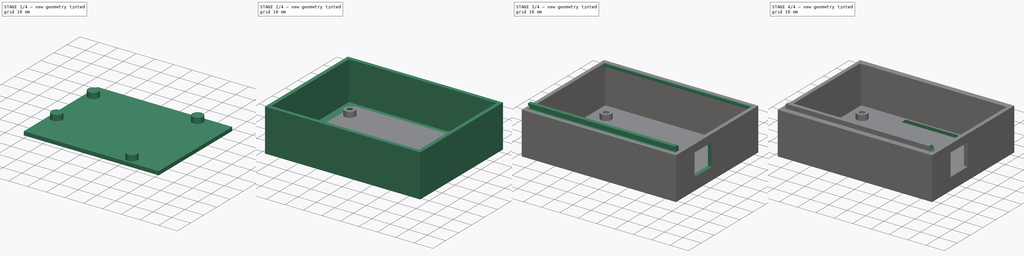
[diagram: build sequence overview — one tinted view per stage of 4, left to right]
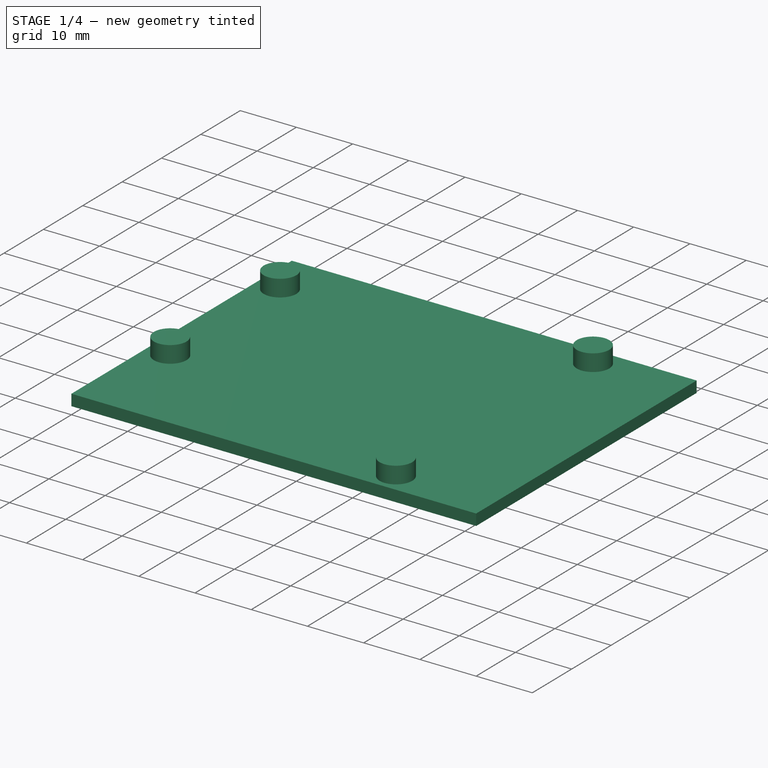
[diagram: stage 1 of 4 — iso view after this stage's code; geometry added in this stage tinted green]
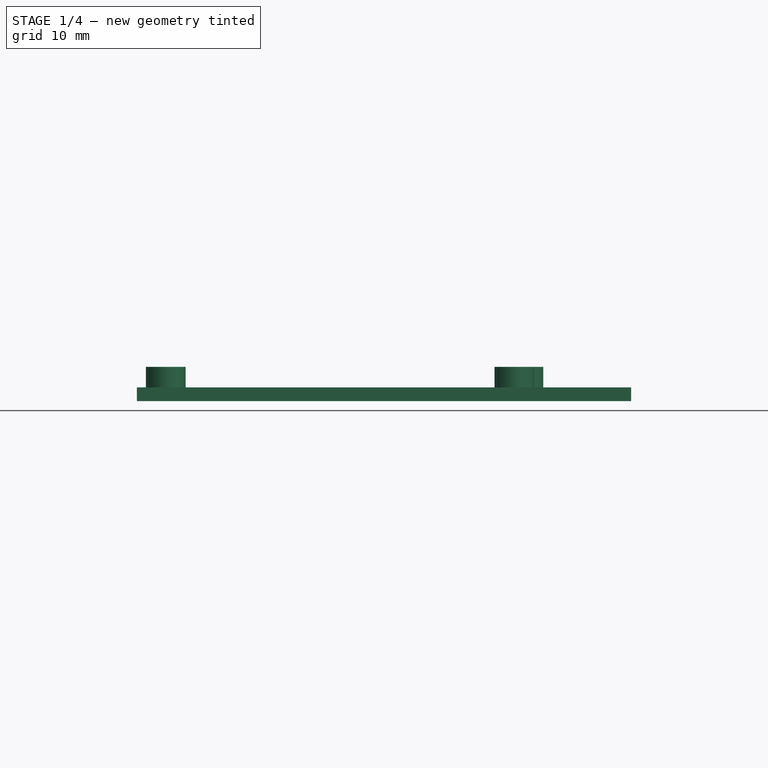
[diagram: stage 1 of 4 — front view after this stage's code; geometry added in this stage tinted green]
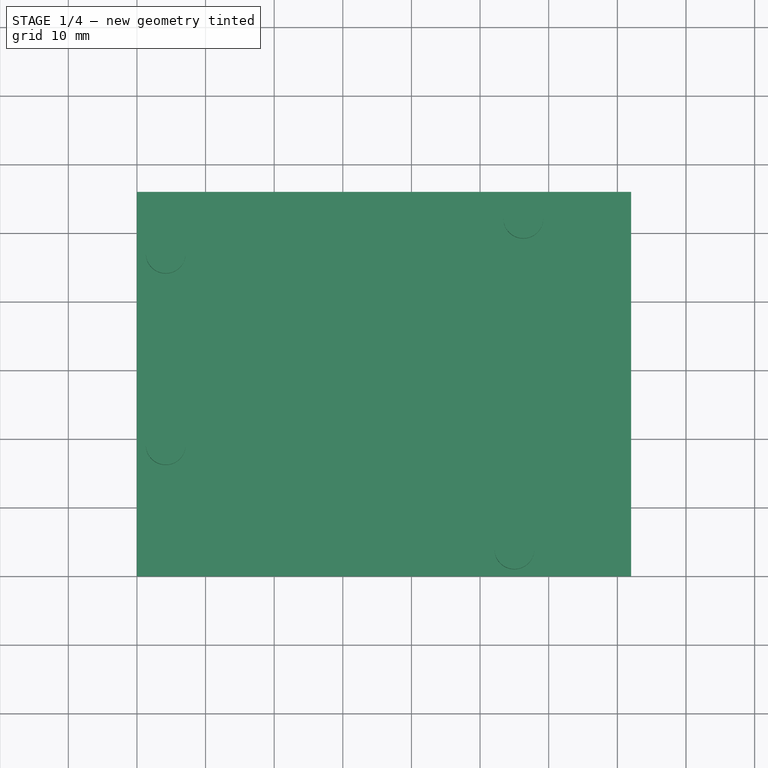
[diagram: stage 1 of 4 — top view after this stage's code; geometry added in this stage tinted green]
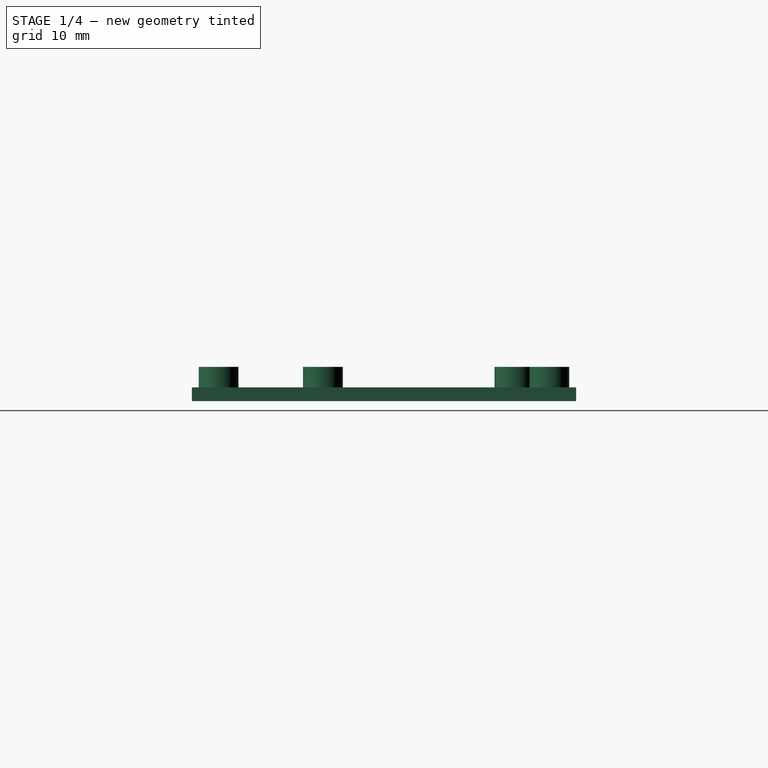
[diagram: stage 1 of 4 — right view after this stage's code; geometry added in this stage tinted green]
FCSTD DOCUMENT  (FreeCAD 0.18.3R)
Label: Controller Case Bottom
License: All rights reserved
LicenseURL: http://en.wikipedia.org/wiki/All_rights_reserved
objects: Sketcher::SketchObject×10, PartDesign::Pad×6, PartDesign::Pocket×4, PartDesign::Body×1, Spreadsheet::Sheet×1
note: 31 computed .brp shape members not serialized (recipe doc carries the construction recipe); baked Part::Feature solids carry a one-line shape summary decoded from their .brp

FEATURE [Sketcher::SketchObject] Sketch  label="Sketch Base"
  MapMode = 5
  Support = -> [XY_Plane]
  sketch-geometry (4):
    g0: LineSegment StartX=0 StartY=0 StartZ=0 EndX=72 EndY=0 EndZ=0
    g1: LineSegment StartX=72 StartY=0 StartZ=0 EndX=72 EndY=56 EndZ=0
    g2: LineSegment StartX=72 StartY=56 StartZ=0 EndX=0 EndY=56 EndZ=0
    g3: LineSegment StartX=0 StartY=56 StartZ=0 EndX=0 EndY=0 EndZ=0
  constraints (11):
    c: Coincident(g0,g1)
    c: Coincident(g1,g2)
    c: Coincident(g2,g3)
    c: Coincident(g3,g0)
    c: Horizontal(g0)
    c: Horizontal(g2)
    c: Vertical(g1)
    c: Vertical(g3)
    c: Coincident(g0,g-1)
    c: Distance(g0) = 72
    c: Distance(g1) = 56
FEATURE [PartDesign::Pad] Pad  label="Base"
  Length = 2
  Length2 = 100
  Profile = -> Sketch
  Type = 0
FEATURE [Sketcher::SketchObject] Sketch001  label="Sketch Uno Studs"
  ExternalGeometry = -> [Pad]
  MapMode = 5
  Placement = pos=(0,0,2) rot=(0,0,1;0rad)
  Support = -> [Pad]
  sketch-geometry (6):
    g0: Circle CenterX=4.2 CenterY=47 CenterZ=0 NormalX=0 NormalY=0 NormalZ=1 AngleXU=0 Radius=2.9
    g1: Circle CenterX=4.2 CenterY=19.1 CenterZ=0 NormalX=0 NormalY=0 NormalZ=1 AngleXU=0 Radius=2.9
    g2: Circle CenterX=56.3 CenterY=52.1 CenterZ=0 NormalX=0 NormalY=0 NormalZ=1 AngleXU=0 Radius=2.9
    g3: Circle CenterX=55 CenterY=3.9 CenterZ=0 NormalX=0 NormalY=0 NormalZ=1 AngleXU=0 Radius=2.9
    g4: LineSegment [constr] StartX=56.3 StartY=52.1 StartZ=0 EndX=56.3 EndY=56 EndZ=0
    g5: LineSegment [constr] StartX=55 StartY=3.9 StartZ=0 EndX=55 EndY=0 EndZ=0
  constraints (18):
    c: Equal(g2,g0)
    c: Equal(g0,g1)
    c: Equal(g1,g3)
    c: Vertical(g0,g1)
    c: Distance(g0,g1) = 27.9
    c: DistanceX(g1,g3) = 50.8
    c: DistanceX(g3,g2) = 1.3
    c: DistanceY(g3,g1) = 15.2
    c: DistanceY(g0,g2) = 5.1
    c: Diameter(g3) = 5.8
    c: Coincident(g4,g2)
    c: PointOnObject(g4,g-3)
    c: Vertical(g4)
    c: Coincident(g5,g3)
    c: PointOnObject(g5,g-1)
    c: Vertical(g5)
    c: Equal(g4,g5)
    c: Distance(g0,g-2) = 4.2
FEATURE [PartDesign::Pad] Pad001  label="Uno Studs"
  BaseFeature = -> Pad
  Length = 3
  Length2 = 100
  Profile = -> Sketch001
  Type = 0
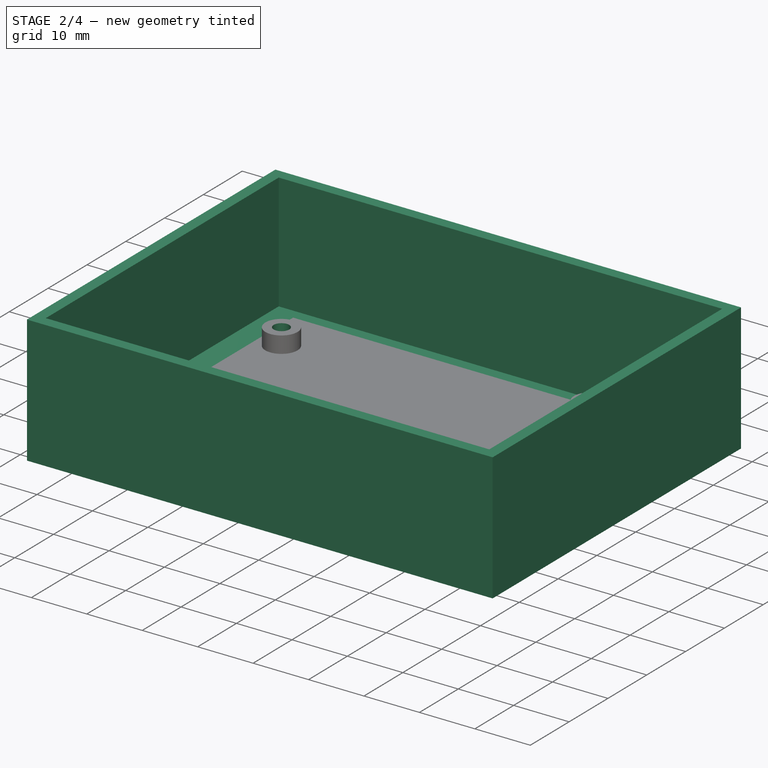
[diagram: stage 2 of 4 — iso view after this stage's code; geometry added in this stage tinted green]
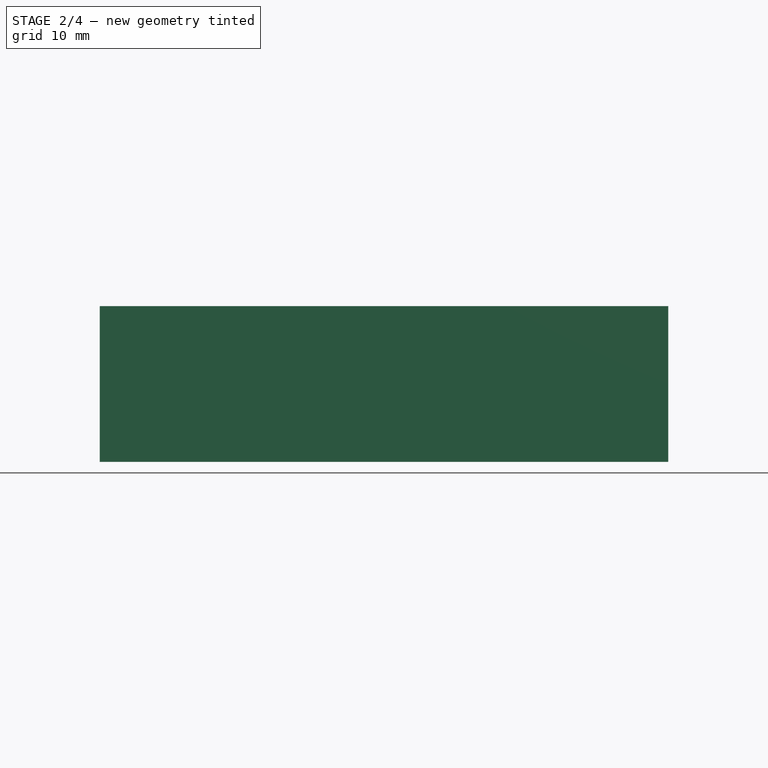
[diagram: stage 2 of 4 — front view after this stage's code; geometry added in this stage tinted green]
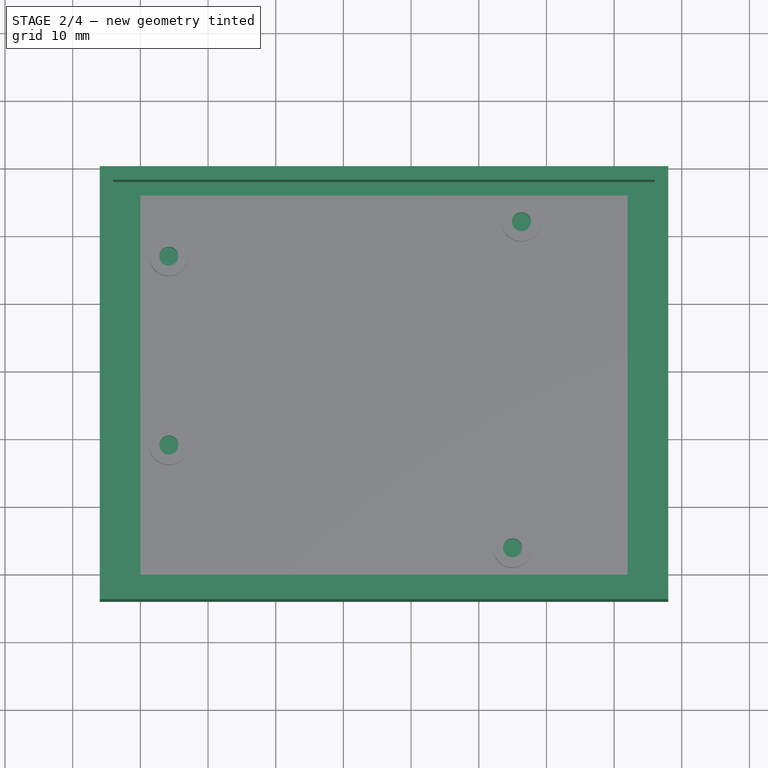
[diagram: stage 2 of 4 — top view after this stage's code; geometry added in this stage tinted green]
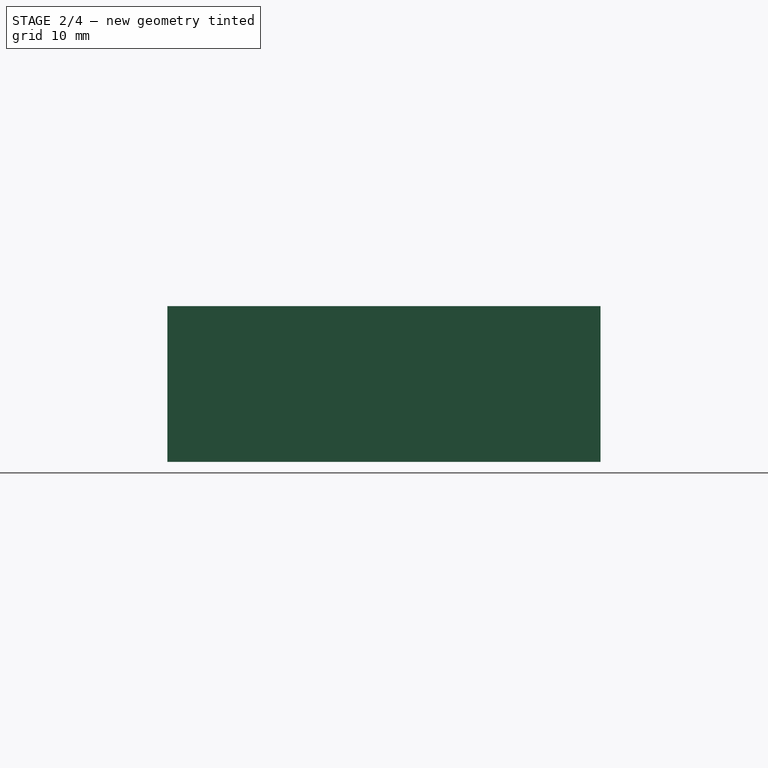
[diagram: stage 2 of 4 — right view after this stage's code; geometry added in this stage tinted green]
FEATURE [Sketcher::SketchObject] Sketch002  label="Sketch Uno Holes"
  ExternalGeometry = -> [Pad001]
  MapMode = 5
  Placement = pos=(0,0,5) rot=(0,0,1;0rad)
  Support = -> [Pad001]
  expr: Constraints[7] = Screws.m3d
  sketch-geometry (4):
    g0: Circle CenterX=4.2 CenterY=47 CenterZ=0 NormalX=0 NormalY=0 NormalZ=1 AngleXU=0 Radius=1.4
    g1: Circle CenterX=56.3 CenterY=52.1 CenterZ=0 NormalX=0 NormalY=0 NormalZ=1 AngleXU=0 Radius=1.4
    g2: Circle CenterX=4.2 CenterY=19.1 CenterZ=0 NormalX=0 NormalY=0 NormalZ=1 AngleXU=0 Radius=1.4
    g3: Circle CenterX=55 CenterY=3.9 CenterZ=0 NormalX=0 NormalY=0 NormalZ=1 AngleXU=0 Radius=1.4
  constraints (8):
    c: Coincident(g0,g-3)
    c: Coincident(g1,g-4)
    c: Coincident(g2,g-6)
    c: Coincident(g3,g-5)
    c: Equal(g0,g2)
    c: Equal(g2,g1)
    c: Equal(g1,g3)
    c: Diameter(g0) = 2.8
FEATURE [PartDesign::Pocket] Pocket  label="Uno Holes"
  BaseFeature = -> Pad001
  Length = 4.2
  Length2 = 100
  Profile = -> Sketch002
  Type = 0
FEATURE [Sketcher::SketchObject] Sketch003  label="Sketch Base Extra Margin"
  ExternalGeometry = -> [Pocket]
  MapMode = 5
  Support = -> [XY_Plane]
  sketch-geometry (8):
    g0: LineSegment StartX=0 StartY=0 StartZ=0 EndX=72 EndY=0 EndZ=0
    g1: LineSegment StartX=72 StartY=0 StartZ=0 EndX=72 EndY=56 EndZ=0
    g2: LineSegment StartX=72 StartY=56 StartZ=0 EndX=0 EndY=56 EndZ=0
    g3: LineSegment StartX=0 StartY=56 StartZ=0 EndX=0 EndY=0 EndZ=0
    g4: LineSegment StartX=-6 StartY=-4 StartZ=0 EndX=78 EndY=-4 EndZ=0
    g5: LineSegment StartX=78 StartY=-4 StartZ=0 EndX=78 EndY=60 EndZ=0
    g6: LineSegment StartX=78 StartY=60 StartZ=0 EndX=-6 EndY=60 EndZ=0
    g7: LineSegment StartX=-6 StartY=60 StartZ=0 EndX=-6 EndY=-4 EndZ=0
  constraints (24):
    c: Coincident(g0,g1)
    c: Coincident(g1,g2)
    c: Coincident(g2,g3)
    c: Coincident(g3,g0)
    c: Horizontal(g0)
    c: Horizontal(g2)
    c: Vertical(g1)
    c: Vertical(g3)
    c: Coincident(g0,g-1)
    c: Coincident(g1,g-3)
    c: Coincident(g4,g5)
    c: Coincident(g5,g6)
    c: Coincident(g6,g7)
    c: Coincident(g7,g4)
    c: Horizontal(g4)
    c: Horizontal(g6)
    c: Vertical(g5)
    c: Vertical(g7)
    c: DistanceX(g1,g5) = 6
    c: DistanceX(g6,g2) = 6
    c: DistanceY(g4,g0) = 4
    c: DistanceY(g2,g6) = 4
    c: Distance(g4) = 84
    c: Distance(g5) = 64
FEATURE [PartDesign::Pad] Pad002  label="Base Extra Margin"
  BaseFeature = -> Pocket
  Length = 2
  Length2 = 100
  Profile = -> Sketch003
  Type = 0
FEATURE [Sketcher::SketchObject] Sketch004  label="Sketch Walls"
  ExternalGeometry = -> [Pad002]
  MapMode = 5
  Placement = pos=(0,0,2) rot=(0,0,1;0rad)
  Support = -> [Pad002]
  sketch-geometry (12):
    g0: LineSegment StartX=-6 StartY=-4 StartZ=0 EndX=78 EndY=-4 EndZ=0
    g1: LineSegment StartX=78 StartY=-4 StartZ=0 EndX=78 EndY=60 EndZ=0
    g2: LineSegment StartX=78 StartY=60 StartZ=0 EndX=-6 EndY=60 EndZ=0
    g3: LineSegment StartX=-6 StartY=60 StartZ=0 EndX=-6 EndY=-4 EndZ=0
    g4: LineSegment StartX=-4 StartY=-2 StartZ=0 EndX=76 EndY=-2 EndZ=0
    g5: LineSegment StartX=76 StartY=-2 StartZ=0 EndX=76 EndY=58 EndZ=0
    g6: LineSegment StartX=76 StartY=58 StartZ=0 EndX=-4 EndY=58 EndZ=0
    g7: LineSegment StartX=-4 StartY=58 StartZ=0 EndX=-4 EndY=-2 EndZ=0
    g8: LineSegment [constr] StartX=-4 StartY=-2 StartZ=0 EndX=-4 EndY=-4 EndZ=0
    g9: LineSegment [constr] StartX=-4 StartY=-2 StartZ=0 EndX=-6 EndY=-2 EndZ=0
    g10: LineSegment [constr] StartX=76 StartY=58 StartZ=0 EndX=78 EndY=58 EndZ=0
    g11: LineSegment [constr] StartX=76 StartY=58 StartZ=0 EndX=76 EndY=60 EndZ=0
  constraints (34):
    c: Coincident(g0,g1)
    c: Coincident(g1,g2)
    c: Coincident(g2,g3)
    c: Coincident(g3,g0)
    c: Horizontal(g0)
    c: Horizontal(g2)
    c: Vertical(g1)
    c: Vertical(g3)
    c: Coincident(g0,g-3)
    c: Coincident(g1,g-4)
    c: Coincident(g4,g5)
    c: Coincident(g5,g6)
    c: Coincident(g6,g7)
    c: Coincident(g7,g4)
    c: Horizontal(g4)
    c: Horizontal(g6)
    c: Vertical(g5)
    c: Vertical(g7)
    c: Coincident(g8,g4)
    c: PointOnObject(g8,g0)
    c: Vertical(g8)
    c: Coincident(g9,g4)
    c: PointOnObject(g9,g3)
    c: Horizontal(g9)
    c: Coincident(g10,g5)
    c: PointOnObject(g10,g1)
    c: Horizontal(g10)
    c: Coincident(g11,g5)
    c: PointOnObject(g11,g2)
    c: Vertical(g11)
    c: Equal(g11,g10)
    c: Equal(g10,g8)
    c: Equal(g8,g9)
    c: Distance(g8) = 2
FEATURE [PartDesign::Pad] Pad003  label="Walls"
  BaseFeature = -> Pad002
  Length = 21
  Length2 = 100
  Profile = -> Sketch004
  Type = 0
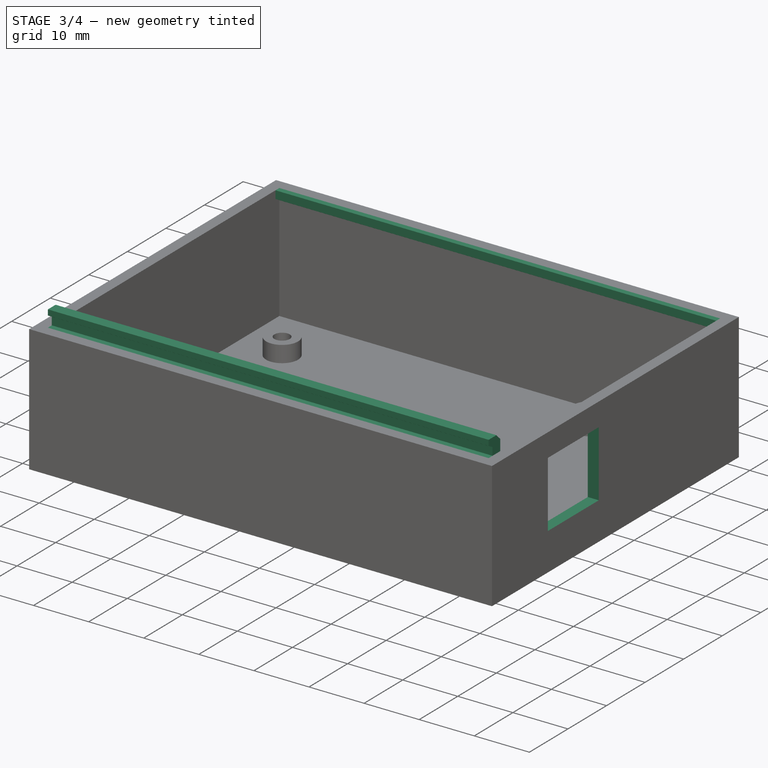
[diagram: stage 3 of 4 — iso view after this stage's code; geometry added in this stage tinted green]
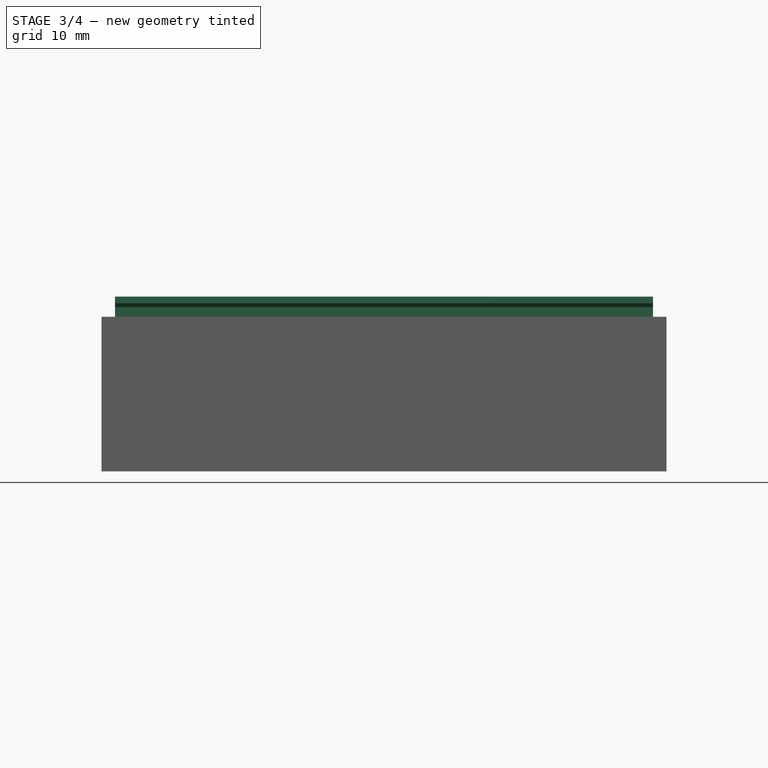
[diagram: stage 3 of 4 — front view after this stage's code; geometry added in this stage tinted green]
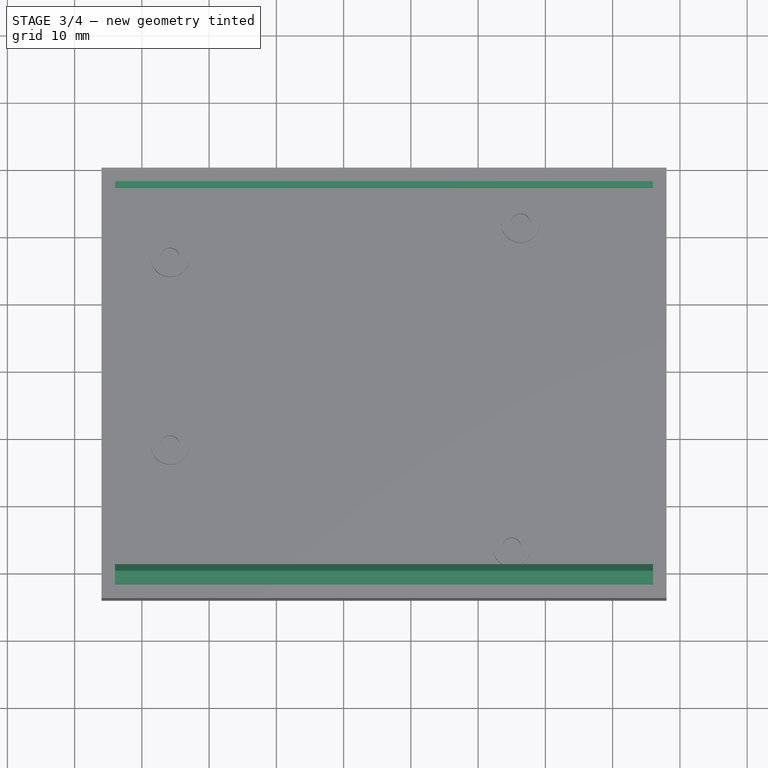
[diagram: stage 3 of 4 — top view after this stage's code; geometry added in this stage tinted green]
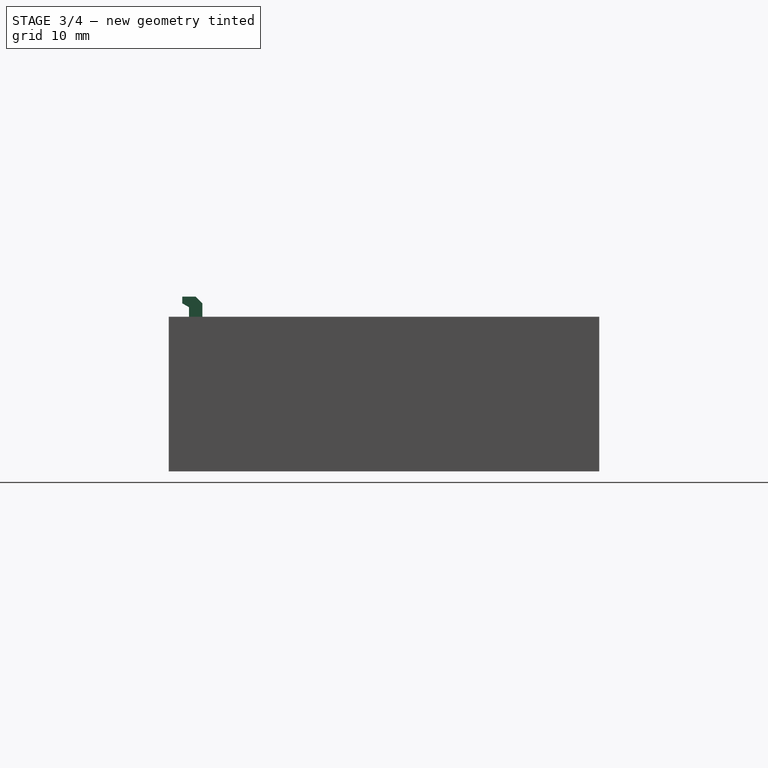
[diagram: stage 3 of 4 — right view after this stage's code; geometry added in this stage tinted green]
FEATURE [Sketcher::SketchObject] Sketch005  label="Sketch USB Cut"
  ExternalGeometry = -> [Pad003]
  MapMode = 5
  Placement = pos=(78,0,0) rot=(0.57735,0.57735,0.57735;2.0944rad)
  Support = -> [Pad003]
  sketch-geometry (4):
    g0: LineSegment StartX=10.5 StartY=6.8 StartZ=0 EndX=23.7 EndY=6.8 EndZ=0
    g1: LineSegment StartX=23.7 StartY=6.8 StartZ=0 EndX=23.7 EndY=18.8 EndZ=0
    g2: LineSegment StartX=23.7 StartY=18.8 StartZ=0 EndX=10.5 EndY=18.8 EndZ=0
    g3: LineSegment StartX=10.5 StartY=18.8 StartZ=0 EndX=10.5 EndY=6.8 EndZ=0
  constraints (12):
    c: Coincident(g0,g1)
    c: Coincident(g1,g2)
    c: Coincident(g2,g3)
    c: Coincident(g3,g0)
    c: Horizontal(g0)
    c: Horizontal(g2)
    c: Vertical(g1)
    c: Vertical(g3)
    c: Distance(g1) = 12
    c: Distance(g0) = 13.2
    c: Distance(g0,g-3) = 4.8
    c: DistanceX(g-4,g0) = 6.6
FEATURE [PartDesign::Pocket] Pocket001  label="USB Cut"
  BaseFeature = -> Pad003
  Length = 5
  Length2 = 100
  Profile = -> Sketch005
  Type = 0
FEATURE [Sketcher::SketchObject] Sketch006  label="Sketch Front Latch"
  ExternalGeometry = -> [Pocket001]
  MapMode = 5
  Placement = pos=(-4,0,0) rot=(0.57735,0.57735,0.57735;2.0944rad)
  Support = -> [Pocket001]
  sketch-geometry (9):
    g0: LineSegment StartX=-2 StartY=23 StartZ=0 EndX=-2 EndY=20 EndZ=0
    g1: LineSegment StartX=-2 StartY=20 StartZ=0 EndX=1 EndY=23 EndZ=0
    g2: LineSegment StartX=1 StartY=23 StartZ=0 EndX=1 EndY=25 EndZ=0
    g3: LineSegment StartX=-2 StartY=26 StartZ=0 EndX=-2 EndY=25 EndZ=0
    g4: LineSegment StartX=-2 StartY=25 StartZ=0 EndX=-1 EndY=24.4226 EndZ=0
    g5: LineSegment StartX=-1 StartY=24.4226 StartZ=0 EndX=-1 EndY=23 EndZ=0
    g6: LineSegment StartX=-1 StartY=23 StartZ=0 EndX=-2 EndY=23 EndZ=0
    g7: LineSegment StartX=-2 StartY=26 StartZ=0 EndX=0 EndY=26 EndZ=0
    g8: LineSegment StartX=0 StartY=26 StartZ=0 EndX=1 EndY=25 EndZ=0
  constraints (26):
    c: Coincident(g-3,g0)
    c: PointOnObject(g0,g-3)
    c: Coincident(g0,g1)
    c: Coincident(g1,g2)
    c: Vertical(g2)
    c: Vertical(g3)
    c: Coincident(g3,g4)
    c: Coincident(g4,g5)
    c: Vertical(g5)
    c: Coincident(g5,g6)
    c: Coincident(g6,g0)
    c: Horizontal(g6)
    c: Horizontal(g1,g5)
    c: Vertical(g3,g0)
    c: Distance(g4,g2) = 2
    c: Coincident(g3,g7)
    c: Horizontal(g7)
    c: Coincident(g7,g8)
    c: Coincident(g8,g2)
    c: Angle(g-2,g8) = 0.785398
    c: Angle(g1,g0) = 0.785398
    c: DistanceX(g3,g4) = 1
    c: Angle(g4,g5) = 2.0944
    c: Distance(g3) = 1
    c: Distance(g0,g3) = 2
    c: Distance(g7) = 2
FEATURE [PartDesign::Pad] Pad004  label="Front Latch"
  BaseFeature = -> Pocket001
  Length = 10
  Length2 = 100
  Profile = -> Sketch006
  Type = 3
  UpToFace = -> Pocket001 [Face18]
FEATURE [Sketcher::SketchObject] Sketch007  label="Sketch Rear Latch"
  ExternalGeometry = -> [Pad004]
  MapMode = 5
  Placement = pos=(-4,0,0) rot=(0.57735,0.57735,0.57735;2.0944rad)
  Support = -> [Pad004]
  sketch-geometry (4):
    g0: LineSegment StartX=58 StartY=23 StartZ=0 EndX=57 EndY=23 EndZ=0
    g1: LineSegment StartX=57 StartY=23 StartZ=0 EndX=57 EndY=21.5774 EndZ=0
    g2: LineSegment StartX=57 StartY=21.5774 StartZ=0 EndX=58 EndY=21 EndZ=0
    g3: LineSegment StartX=58 StartY=21 StartZ=0 EndX=58 EndY=23 EndZ=0
  constraints (11):
    c: Coincident(g-3,g0)
    c: Horizontal(g0)
    c: Coincident(g0,g1)
    c: Vertical(g1)
    c: Coincident(g1,g2)
    c: PointOnObject(g2,g-3)
    c: Coincident(g2,g3)
    c: Coincident(g3,g0)
    c: Distance(g0) = 1
    c: Distance(g3) = 2
    c: Angle(g2,g1) = 2.0944
FEATURE [PartDesign::Pad] Pad005  label="Rear Latch"
  BaseFeature = -> Pad004
  Length = 10
  Length2 = 100
  Profile = -> Sketch007
  Type = 3
  UpToFace = -> Pad004 [Face21]
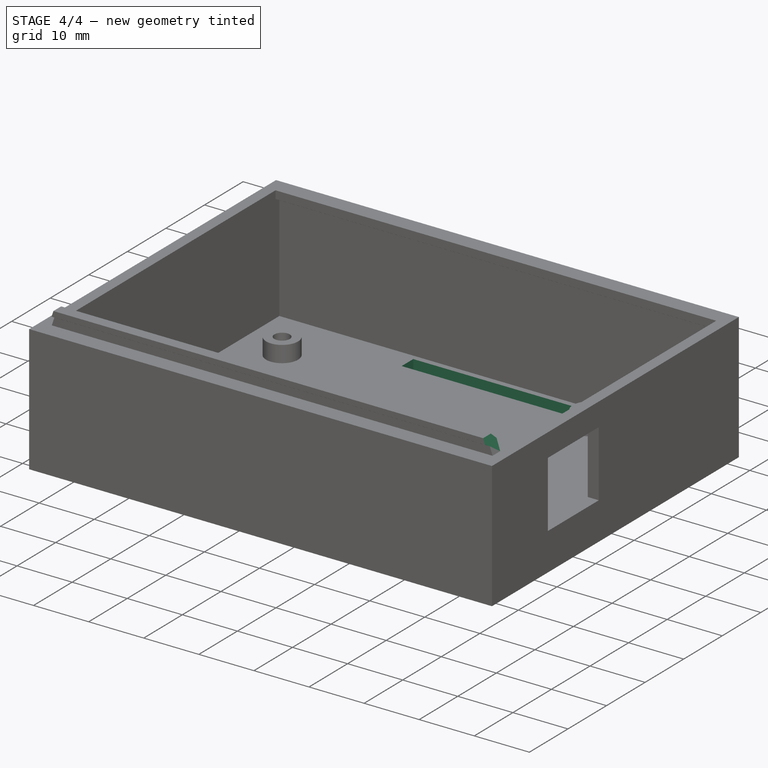
[diagram: stage 4 of 4 — iso view after this stage's code; geometry added in this stage tinted green]
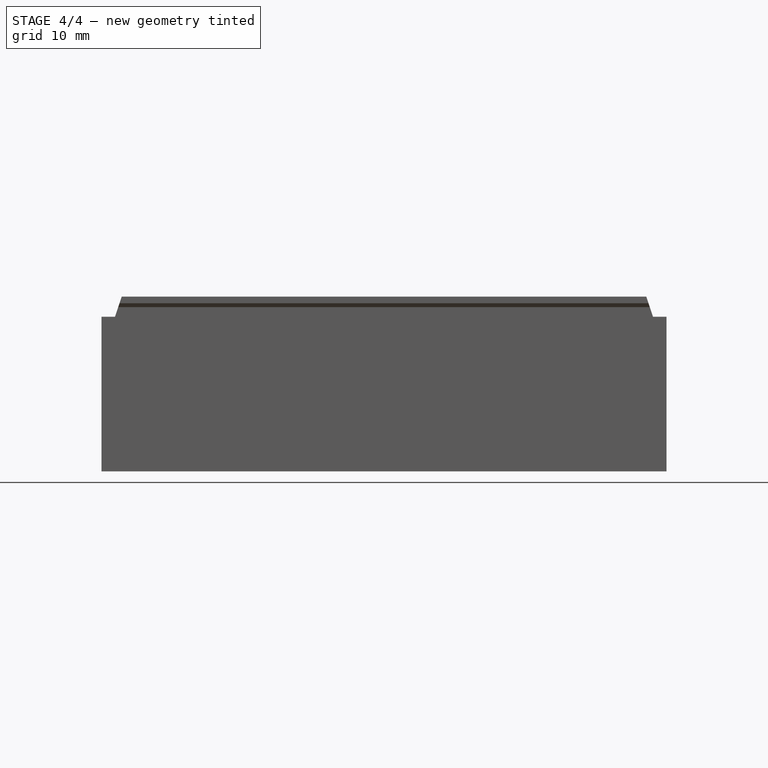
[diagram: stage 4 of 4 — front view after this stage's code; geometry added in this stage tinted green]
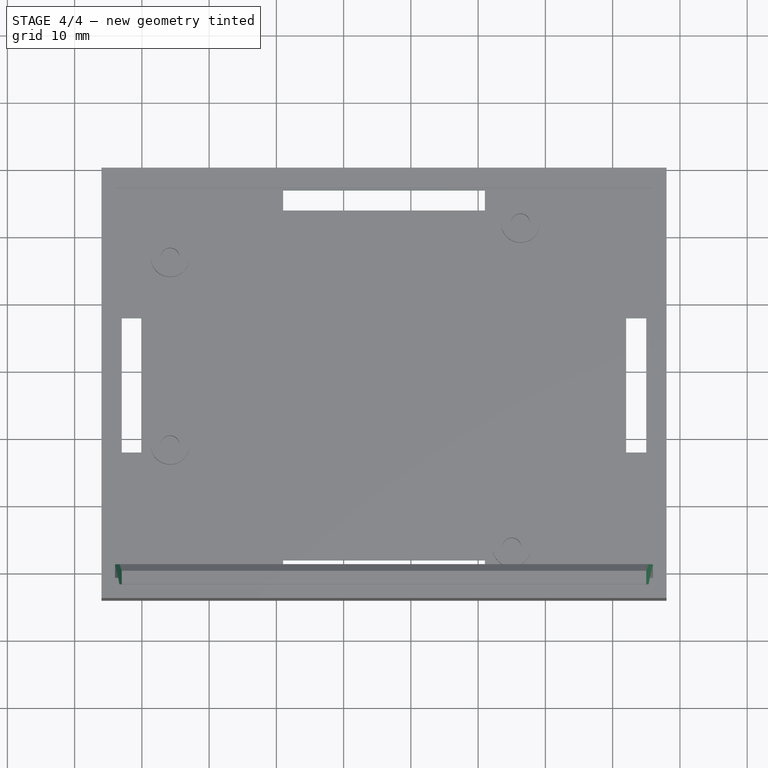
[diagram: stage 4 of 4 — top view after this stage's code; geometry added in this stage tinted green]
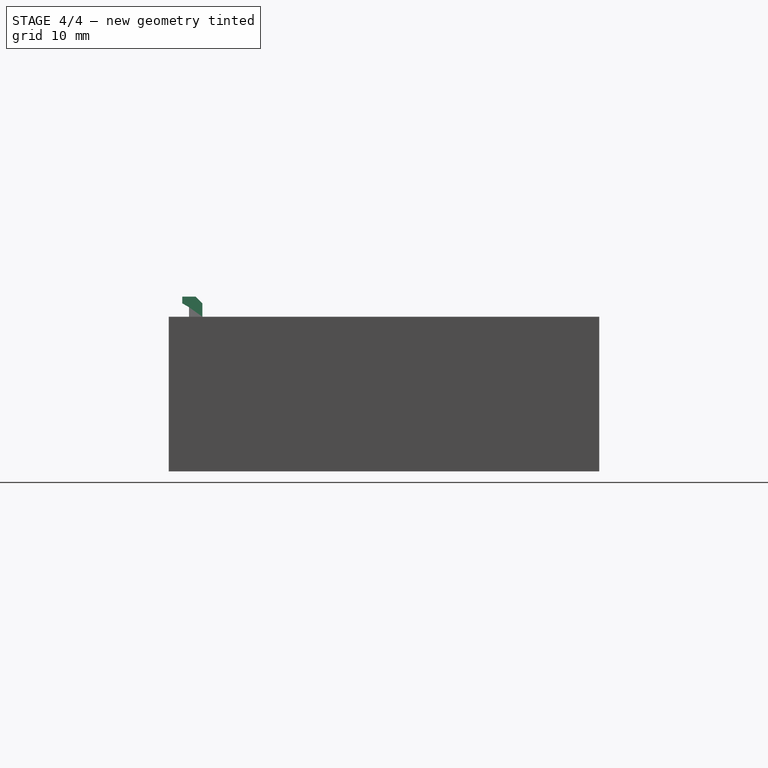
[diagram: stage 4 of 4 — right view after this stage's code; geometry added in this stage tinted green]
FEATURE [Sketcher::SketchObject] Sketch008  label="Sketch Bottom Cuts"
  ExternalGeometry = -> [Pad005]
  MapMode = 5
  Placement = pos=(0,0,2) rot=(0,0,1;0rad)
  Support = -> [Pad005]
  sketch-geometry (20):
    g0: LineSegment StartX=-3 StartY=38 StartZ=0 EndX=0 EndY=38 EndZ=0
    g1: LineSegment StartX=0 StartY=38 StartZ=0 EndX=0 EndY=18 EndZ=0
    g2: LineSegment StartX=0 StartY=18 StartZ=0 EndX=-3 EndY=18 EndZ=0
    g3: LineSegment StartX=-3 StartY=18 StartZ=0 EndX=-3 EndY=38 EndZ=0
    g4: LineSegment StartX=72 StartY=38 StartZ=0 EndX=75 EndY=38 EndZ=0
    g5: LineSegment StartX=75 StartY=38 StartZ=0 EndX=75 EndY=18 EndZ=0
    g6: LineSegment StartX=75 StartY=18 StartZ=0 EndX=72 EndY=18 EndZ=0
    g7: LineSegment StartX=72 StartY=18 StartZ=0 EndX=72 EndY=38 EndZ=0
    g8: LineSegment StartX=21 StartY=57 StartZ=0 EndX=51 EndY=57 EndZ=0
    g9: LineSegment StartX=51 StartY=57 StartZ=0 EndX=51 EndY=54 EndZ=0
    g10: LineSegment StartX=51 StartY=54 StartZ=0 EndX=21 EndY=54 EndZ=0
    g11: LineSegment StartX=21 StartY=54 StartZ=0 EndX=21 EndY=57 EndZ=0
    g12: LineSegment StartX=21 StartY=-1 StartZ=0 EndX=51 EndY=-1 EndZ=0
    g13: LineSegment StartX=51 StartY=-1 StartZ=0 EndX=51 EndY=2 EndZ=0
    g14: LineSegment StartX=51 StartY=2 StartZ=0 EndX=21 EndY=2 EndZ=0
    g15: LineSegment StartX=21 StartY=2 StartZ=0 EndX=21 EndY=-1 EndZ=0
    g16: LineSegment [constr] StartX=36 StartY=57 StartZ=0 EndX=36 EndY=58 EndZ=0
    g17: LineSegment [constr] StartX=-3 StartY=28 StartZ=0 EndX=-4 EndY=28 EndZ=0
    g18: LineSegment [constr] StartX=75 StartY=38 StartZ=0 EndX=76 EndY=38 EndZ=0
    g19: LineSegment [constr] StartX=21 StartY=-1 StartZ=0 EndX=21 EndY=-2 EndZ=0
  constraints (58):
    c: Coincident(g0,g1)
    c: Coincident(g1,g2)
    c: Coincident(g2,g3)
    c: Horizontal(g0)
    c: Horizontal(g2)
    c: Vertical(g1)
    c: Coincident(g4,g5)
    c: Coincident(g5,g6)
    c: Coincident(g6,g7)
    c: Coincident(g7,g4)
    c: Horizontal(g4)
    c: Horizontal(g6)
    c: Vertical(g5)
    c: Vertical(g7)
    c: Coincident(g8,g9)
    c: Coincident(g9,g10)
    c: Coincident(g10,g11)
    c: Horizontal(g10)
    c: Vertical(g9)
    c: Vertical(g11)
    c: Coincident(g12,g13)
    c: Coincident(g13,g14)
    c: Coincident(g14,g15)
    c: Coincident(g15,g12)
    c: Horizontal(g12)
    c: Horizontal(g14)
    c: Vertical(g13)
    c: Vertical(g15)
    c: Equal(g2,g15)
    c: Equal(g15,g6)
    c: Equal(g6,g9)
    c: Horizontal(g0,g4)
    c: Horizontal(g2,g6)
    c: Vertical(g10,g14)
    c: Vertical(g9,g13)
    c: PointOnObject(g16,g-4)
    c: PointOnObject(g17,g-3)
    c: Coincident(g18,g4)
    c: PointOnObject(g18,g-5)
    c: Horizontal(g18)
    c: Coincident(g19,g12)
    c: PointOnObject(g19,g-6)
    c: Vertical(g19)
    c: Equal(g19,g18)
    c: Equal(g18,g17)
    c: Equal(g17,g16)
    c: Distance(g17) = 1
    c: Distance(g0) = 3
    c: Distance(g1) = 20
    c: Distance(g10) = 30
    c: Symmetric(g-4,g-5,g16)
    c: Coincident(g11,g8)
    c: Symmetric(g8,g8,g16)
    c: PointOnObject(g16,g8)
    c: Coincident(g3,g0)
    c: PointOnObject(g17,g3)
    c: Symmetric(g-6,g-3,g17)
    c: Symmetric(g2,g0,g17)
FEATURE [PartDesign::Pocket] Pocket002  label="Bottom Cuts"
  BaseFeature = -> Pad005
  Length = 5
  Length2 = 100
  Profile = -> Sketch008
  Type = 0
FEATURE [Sketcher::SketchObject] Sketch009  label="Sketch Front Latch Chamfer"
  ExternalGeometry = -> [Pocket002]
  MapMode = 5
  Placement = pos=(0,-2,0) rot=(1,0,0;1.5708rad)
  Support = -> [Pocket002]
  sketch-geometry (6):
    g0: LineSegment StartX=-4 StartY=23 StartZ=0 EndX=-3 EndY=26 EndZ=0
    g1: LineSegment StartX=-3 StartY=26 StartZ=0 EndX=-4 EndY=26 EndZ=0
    g2: LineSegment StartX=-4 StartY=26 StartZ=0 EndX=-4 EndY=23 EndZ=0
    g3: LineSegment StartX=76 StartY=23 StartZ=0 EndX=75 EndY=26 EndZ=0
    g4: LineSegment StartX=75 StartY=26 StartZ=0 EndX=76 EndY=26 EndZ=0
    g5: LineSegment StartX=76 StartY=26 StartZ=0 EndX=76 EndY=23 EndZ=0
  constraints (14):
    c: Coincident(g-4,g0)
    c: Coincident(g0,g1)
    c: Coincident(g1,g-3)
    c: Horizontal(g1)
    c: Coincident(g1,g2)
    c: Coincident(g2,g0)
    c: Coincident(g-6,g3)
    c: Coincident(g3,g4)
    c: Coincident(g4,g-5)
    c: Horizontal(g4)
    c: Coincident(g4,g5)
    c: Coincident(g5,g3)
    c: Equal(g4,g1)
    c: Distance(g1) = 1
FEATURE [PartDesign::Pocket] Pocket003  label="Front Latch Chamfer"
  BaseFeature = -> Pocket002
  Length = 5
  Length2 = 100
  Profile = -> Sketch009
  Type = 0
FEATURE [PartDesign::Body] Body  label="Controller Case Bottom"
  Group = -> [Sketch,Pad,Sketch001,Pad001,Sketch002,Pocket,Sketch003,Pad002,Sketch004,Pad003,Sketch005,Pocket001,Sketch006,Pad004,Sketch007,Pad005,Sketch008,Pocket002,Sketch009,Pocket003]
  Origin = -> Origin
  Tip = -> Pocket003
FEATURE [Spreadsheet::Sheet] Spreadsheet  label="Screws"
  cells = A1=Screw Type; B1=Length; D1=Diameter Loose; F1=Diameter Tight; H1=Width Across Flats; A2=M3 Tapping; B2=m3tl; C2(m3tl)==12mm; D2=m3tD; E2(m3tD)==3.4mm; F2=m3td; G2(m3td)==2.8mm; A3=M3x30; B3=m3l; C3(m3l)==30mm; D3=m3D; E3(m3D)==3.2mm; F3=m3d; G3(m3d)==2.8mm; A4=M3 Nut; H4=m3S; I4(m3S)==5.6mm
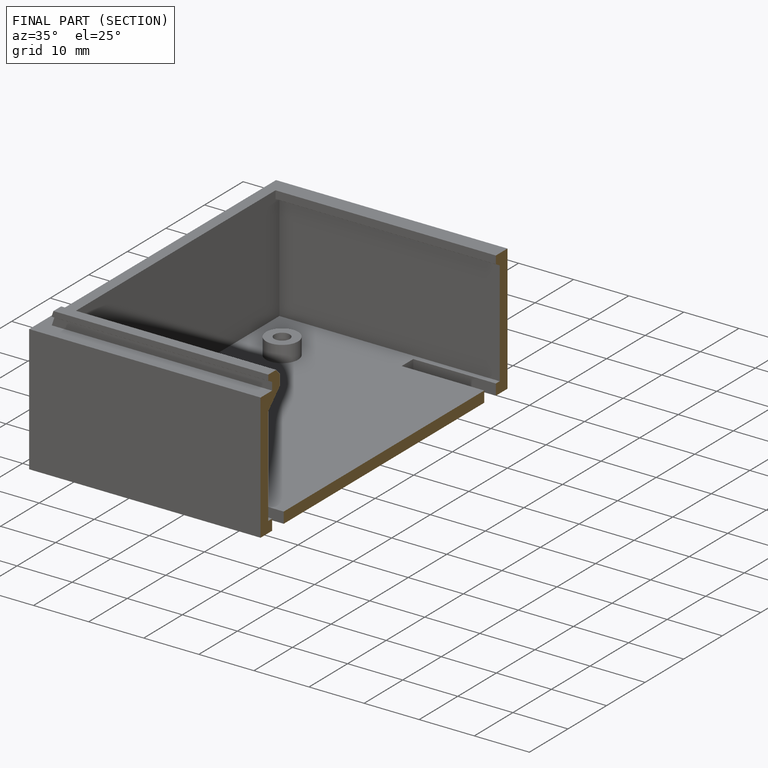
[diagram: finished part — half-section view (interior)]
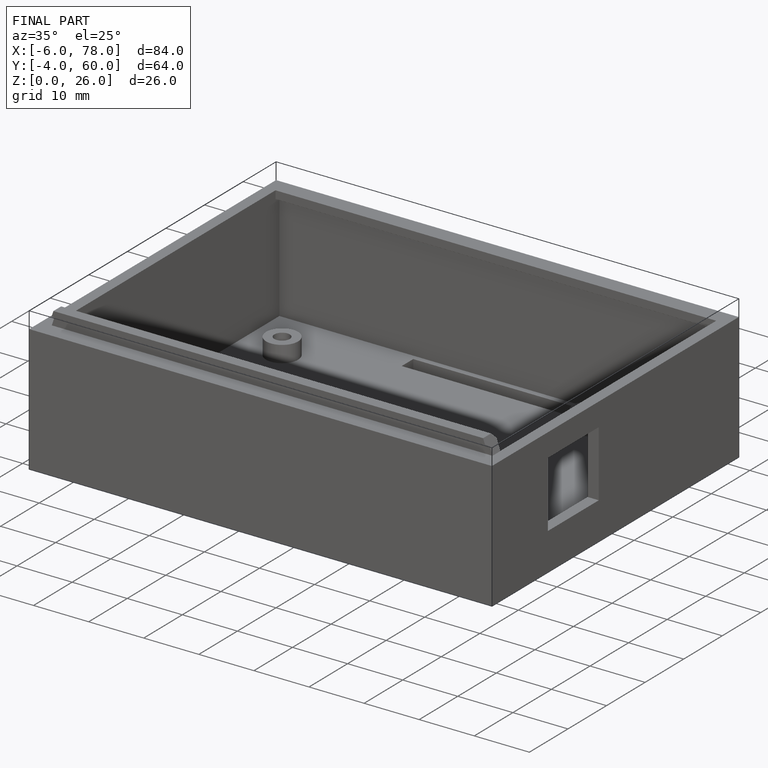
[diagram: finished part — iso view with bounding-box wireframe]
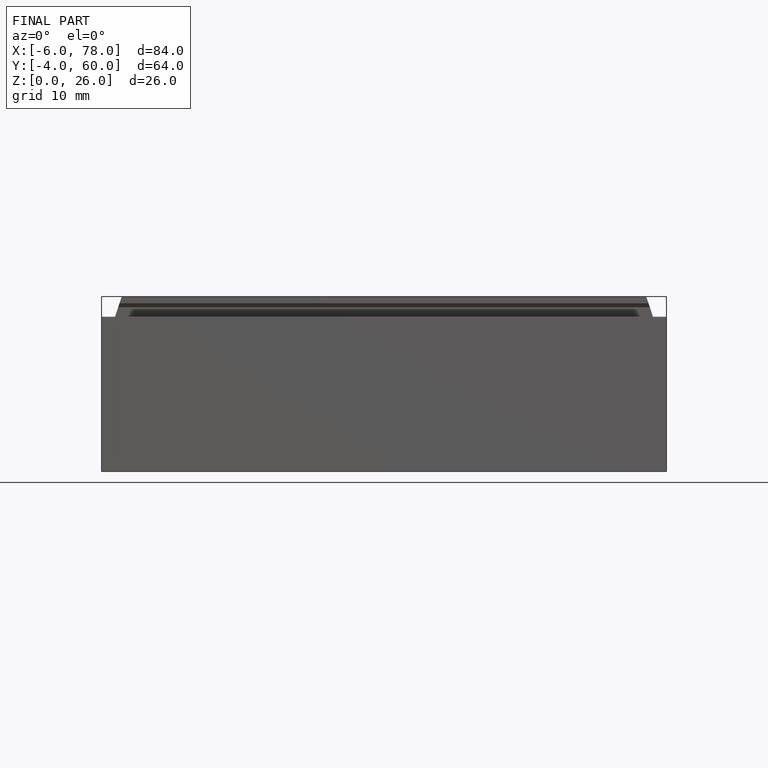
[diagram: finished part — front view with bounding-box wireframe]
